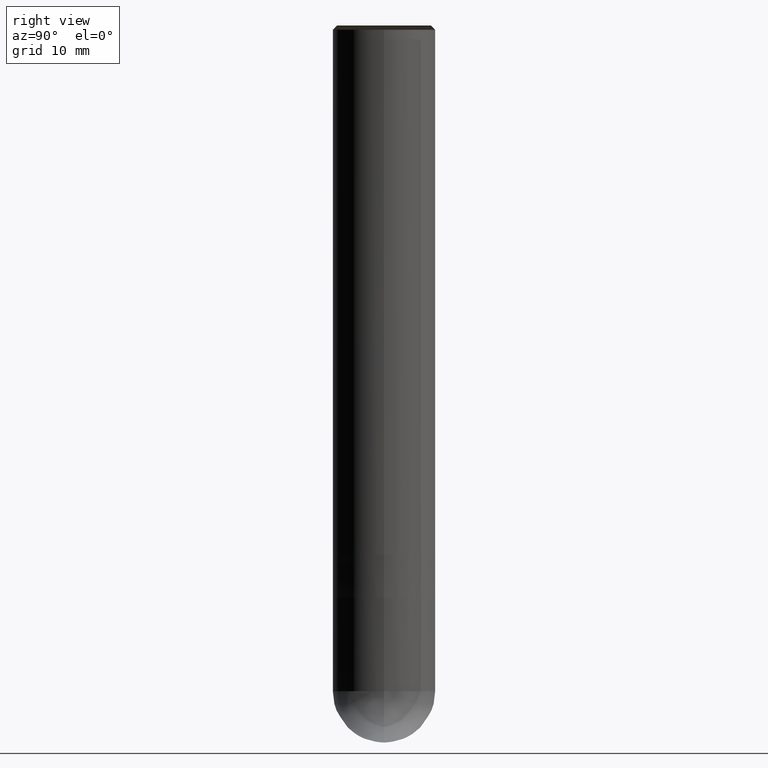
[diagram: clean part render]
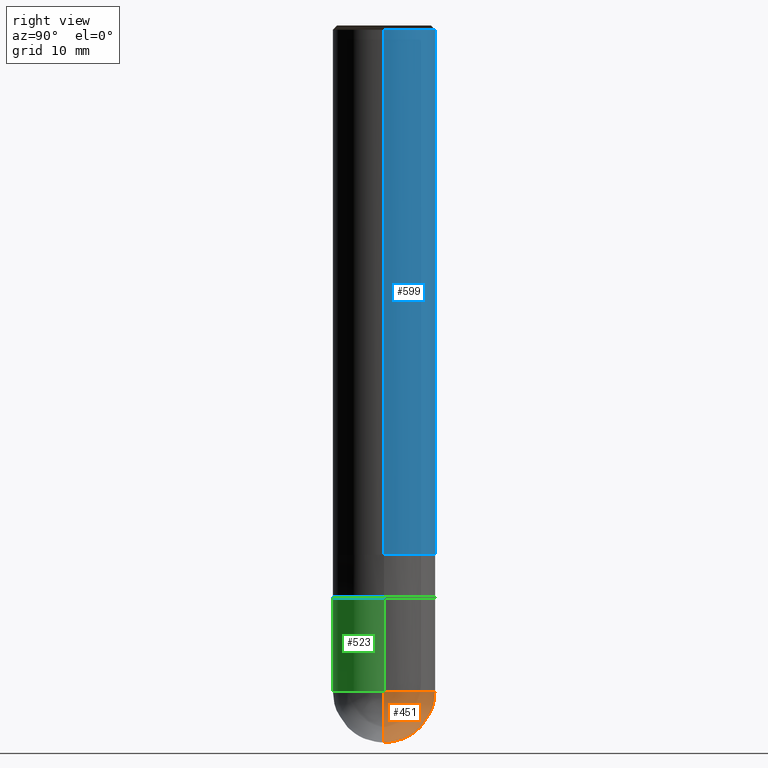
[diagram: same view with three faces highlighted in distinct colors, each labeled with its STEP entity id]
A machine part, right view with three faces highlighted in distinct colors.
Their STEP definitions:

[orange] entity #451 — the highlighted face is a freeform B-spline surface patch.
#380=CARTESIAN_POINT('',(0.0,0.0,-22.0));
#381=CARTESIAN_POINT('',(6.0,0.0,-22.0));
#382=CARTESIAN_POINT('',(6.0,6.0,-22.0));
#383=CARTESIAN_POINT('',(0.0,6.0,-22.0));
#384=CARTESIAN_POINT('',(-6.0,6.0,-22.0));
#385=CARTESIAN_POINT('',(-6.0,0.0,-22.0));
#386=CARTESIAN_POINT('',(6.0,0.0,-16.0));
#387=CARTESIAN_POINT('',(6.0,6.0,-16.0));
#388=CARTESIAN_POINT('',(0.0,6.0,-16.0));
#389=CARTESIAN_POINT('',(-6.0,6.0,-16.0));
#390=CARTESIAN_POINT('',(-6.0,0.0,-16.0));
#436=(
BOUNDED_SURFACE()
B_SPLINE_SURFACE(2,2,(
(#380,#380,#380,#380,#380),
(#381,#382,#383,#384,#385),
(#386,#387,#388,#389,#390)
), .UNSPECIFIED.,.F.,.F.,.F.)
B_SPLINE_SURFACE_WITH_KNOTS((3,3),(3,2,3),(
0.0,1.0),(
0.0,0.5,1.0), .UNSPECIFIED.)
GEOMETRIC_REPRESENTATION_ITEM()
RATIONAL_B_SPLINE_SURFACE(((1.0,0.707106781187,1.0,0.707106781187,1.0),
(0.707106781187,0.5,0.707106781187,0.5,0.707106781187),
(1.0,0.707106781187,1.0,0.707106781187,1.0)
))
REPRESENTATION_ITEM('')
SURFACE()
);
#437=(
BOUNDED_CURVE()
B_SPLINE_CURVE(2,(#390,#385,#380),.UNSPECIFIED.,.F.,.F.)
B_SPLINE_CURVE_WITH_KNOTS((3,3),
(0.0,1.0),.UNSPECIFIED.)
CURVE()
GEOMETRIC_REPRESENTATION_ITEM()
RATIONAL_B_SPLINE_CURVE((1.0,0.707106781187,1.0))
REPRESENTATION_ITEM('')
);
#438=(
BOUNDED_CURVE()
B_SPLINE_CURVE(2,(#380,#381,#386),.UNSPECIFIED.,.F.,.F.)
B_SPLINE_CURVE_WITH_KNOTS((3,3),
(0.0,1.0),.UNSPECIFIED.)
CURVE()
GEOMETRIC_REPRESENTATION_ITEM()
RATIONAL_B_SPLINE_CURVE((1.0,0.707106781187,1.0))
REPRESENTATION_ITEM('')
);
#439=(
BOUNDED_CURVE()
B_SPLINE_CURVE(2,(#386,#387,#388,#389,#390),.UNSPECIFIED.,.F.,.F.)
B_SPLINE_CURVE_WITH_KNOTS((3,2,3),
(0.0,0.5,1.0),.UNSPECIFIED.)
CURVE()
GEOMETRIC_REPRESENTATION_ITEM()
RATIONAL_B_SPLINE_CURVE((1.0,0.707106781187,1.0,0.707106781187,1.0))
REPRESENTATION_ITEM('')
);
#440=VERTEX_POINT('',#380);
#441=VERTEX_POINT('',#386);
#442=VERTEX_POINT('',#390);
#443=EDGE_CURVE('',#442,#440,#437,.T.);
#444=EDGE_CURVE('',#440,#441,#438,.T.);
#445=EDGE_CURVE('',#441,#442,#439,.T.);
#446=ORIENTED_EDGE('',*,*,#443,.T.);
#447=ORIENTED_EDGE('',*,*,#444,.T.);
#448=ORIENTED_EDGE('',*,*,#445,.T.);
#449=EDGE_LOOP('',(#446,#447,#448));
#450=FACE_OUTER_BOUND('',#449,.T.);
#451=ADVANCED_FACE('',(#450),#436,.T.);

[blue] entity #599 — the highlighted face is a freeform B-spline surface patch.
#406=CARTESIAN_POINT('',(6.0,0.0,0.0));
#407=CARTESIAN_POINT('',(6.0,6.0,0.0));
#408=CARTESIAN_POINT('',(0.0,6.0,0.0));
#409=CARTESIAN_POINT('',(-6.0,6.0,0.0));
#410=CARTESIAN_POINT('',(-6.0,0.0,0.0));
#411=CARTESIAN_POINT('',(6.0,0.0,61.5));
#412=CARTESIAN_POINT('',(6.0,6.0,61.5));
#413=CARTESIAN_POINT('',(0.0,6.0,61.5));
#414=CARTESIAN_POINT('',(-6.0,6.0,61.5));
#415=CARTESIAN_POINT('',(-6.0,0.0,61.5));
#580=(
BOUNDED_SURFACE()
B_SPLINE_SURFACE(1,2,(
(#406,#407,#408,#409,#410),
(#411,#412,#413,#414,#415)
), .UNSPECIFIED.,.F.,.F.,.F.)
B_SPLINE_SURFACE_WITH_KNOTS((2,2),(3,2,3),(
0.0,1.0),(
0.0,0.5,1.0), .UNSPECIFIED.)
GEOMETRIC_REPRESENTATION_ITEM()
RATIONAL_B_SPLINE_SURFACE(((1.0,0.707106781187,1.0,0.707106781187,1.0),
(1.0,0.707106781187,1.0,0.707106781187,1.0)
))
REPRESENTATION_ITEM('')
SURFACE()
);
#581=(
BOUNDED_CURVE()
B_SPLINE_CURVE(2,(#410,#409,#408,#407,#406),.UNSPECIFIED.,.F.,.F.)
B_SPLINE_CURVE_WITH_KNOTS((3,2,3),
(0.0,0.5,1.0),.UNSPECIFIED.)
CURVE()
GEOMETRIC_REPRESENTATION_ITEM()
RATIONAL_B_SPLINE_CURVE((1.0,0.707106781187,1.0,0.707106781187,1.0))
REPRESENTATION_ITEM('')
);
#582=(
BOUNDED_CURVE()
B_SPLINE_CURVE(1,(#406,#411),.UNSPECIFIED.,.F.,.F.)
B_SPLINE_CURVE_WITH_KNOTS((2,2),
(0.0,1.0),.UNSPECIFIED.)
CURVE()
GEOMETRIC_REPRESENTATION_ITEM()
RATIONAL_B_SPLINE_CURVE((1.0,1.0))
REPRESENTATION_ITEM('')
);
#583=(
BOUNDED_CURVE()
B_SPLINE_CURVE(2,(#411,#412,#413,#414,#415),.UNSPECIFIED.,.F.,.F.)
B_SPLINE_CURVE_WITH_KNOTS((3,2,3),
(0.0,0.5,1.0),.UNSPECIFIED.)
CURVE()
GEOMETRIC_REPRESENTATION_ITEM()
RATIONAL_B_SPLINE_CURVE((1.0,0.707106781187,1.0,0.707106781187,1.0))
REPRESENTATION_ITEM('')
);
#584=(
BOUNDED_CURVE()
B_SPLINE_CURVE(1,(#415,#410),.UNSPECIFIED.,.F.,.F.)
B_SPLINE_CURVE_WITH_KNOTS((2,2),
(0.0,1.0),.UNSPECIFIED.)
CURVE()
GEOMETRIC_REPRESENTATION_ITEM()
RATIONAL_B_SPLINE_CURVE((1.0,1.0))
REPRESENTATION_ITEM('')
);
#585=VERTEX_POINT('',#406);
#586=VERTEX_POINT('',#410);
#587=VERTEX_POINT('',#411);
#588=VERTEX_POINT('',#415);
#589=EDGE_CURVE('',#586,#585,#581,.T.);
#590=EDGE_CURVE('',#585,#587,#582,.T.);
#591=EDGE_CURVE('',#587,#588,#583,.T.);
#592=EDGE_CURVE('',#588,#586,#584,.T.);
#593=ORIENTED_EDGE('',*,*,#589,.T.);
#594=ORIENTED_EDGE('',*,*,#590,.T.);
#595=ORIENTED_EDGE('',*,*,#591,.T.);
#596=ORIENTED_EDGE('',*,*,#592,.T.);
#597=EDGE_LOOP('',(#593,#594,#595,#596));
#598=FACE_OUTER_BOUND('',#597,.T.);
#599=ADVANCED_FACE('',(#598),#580,.T.);

[green] entity #523 — the highlighted face is a freeform B-spline surface patch.
#386=CARTESIAN_POINT('',(6.0,0.0,-16.0));
#390=CARTESIAN_POINT('',(-6.0,0.0,-16.0));
#391=CARTESIAN_POINT('',(6.0,0.0,-5.0));
#395=CARTESIAN_POINT('',(-6.0,0.0,-5.0));
#400=CARTESIAN_POINT('',(-6.0,-6.0,-16.0));
#401=CARTESIAN_POINT('',(0.0,-6.0,-16.0));
#402=CARTESIAN_POINT('',(6.0,-6.0,-16.0));
#403=CARTESIAN_POINT('',(-6.0,-6.0,-5.0));
#404=CARTESIAN_POINT('',(0.0,-6.0,-5.0));
#405=CARTESIAN_POINT('',(6.0,-6.0,-5.0));
#504=(
BOUNDED_SURFACE()
B_SPLINE_SURFACE(1,2,(
(#390,#400,#401,#402,#386),
(#395,#403,#404,#405,#391)
), .UNSPECIFIED.,.F.,.F.,.F.)
B_SPLINE_SURFACE_WITH_KNOTS((2,2),(3,2,3),(
0.0,1.0),(
0.0,0.5,1.0), .UNSPECIFIED.)
GEOMETRIC_REPRESENTATION_ITEM()
RATIONAL_B_SPLINE_SURFACE(((1.0,0.707106781187,1.0,0.707106781187,1.0),
(1.0,0.707106781187,1.0,0.707106781187,1.0)
))
REPRESENTATION_ITEM('')
SURFACE()
);
#505=(
BOUNDED_CURVE()
B_SPLINE_CURVE(2,(#386,#402,#401,#400,#390),.UNSPECIFIED.,.F.,.F.)
B_SPLINE_CURVE_WITH_KNOTS((3,2,3),
(0.0,0.5,1.0),.UNSPECIFIED.)
CURVE()
GEOMETRIC_REPRESENTATION_ITEM()
RATIONAL_B_SPLINE_CURVE((1.0,0.707106781187,1.0,0.707106781187,1.0))
REPRESENTATION_ITEM('')
);
#506=(
BOUNDED_CURVE()
B_SPLINE_CURVE(1,(#390,#395),.UNSPECIFIED.,.F.,.F.)
B_SPLINE_CURVE_WITH_KNOTS((2,2),
(0.0,1.0),.UNSPECIFIED.)
CURVE()
GEOMETRIC_REPRESENTATION_ITEM()
RATIONAL_B_SPLINE_CURVE((1.0,1.0))
REPRESENTATION_ITEM('')
);
#507=(
BOUNDED_CURVE()
B_SPLINE_CURVE(2,(#395,#403,#404,#405,#391),.UNSPECIFIED.,.F.,.F.)
B_SPLINE_CURVE_WITH_KNOTS((3,2,3),
(0.0,0.5,1.0),.UNSPECIFIED.)
CURVE()
GEOMETRIC_REPRESENTATION_ITEM()
RATIONAL_B_SPLINE_CURVE((1.0,0.707106781187,1.0,0.707106781187,1.0))
REPRESENTATION_ITEM('')
);
#508=(
BOUNDED_CURVE()
B_SPLINE_CURVE(1,(#391,#386),.UNSPECIFIED.,.F.,.F.)
B_SPLINE_CURVE_WITH_KNOTS((2,2),
(0.0,1.0),.UNSPECIFIED.)
CURVE()
GEOMETRIC_REPRESENTATION_ITEM()
RATIONAL_B_SPLINE_CURVE((1.0,1.0))
REPRESENTATION_ITEM('')
);
#509=VERTEX_POINT('',#386);
#510=VERTEX_POINT('',#390);
#511=VERTEX_POINT('',#391);
#512=VERTEX_POINT('',#395);
#513=EDGE_CURVE('',#509,#510,#505,.T.);
#514=EDGE_CURVE('',#510,#512,#506,.T.);
#515=EDGE_CURVE('',#512,#511,#507,.T.);
#516=EDGE_CURVE('',#511,#509,#508,.T.);
#517=ORIENTED_EDGE('',*,*,#513,.T.);
#518=ORIENTED_EDGE('',*,*,#514,.T.);
#519=ORIENTED_EDGE('',*,*,#515,.T.);
#520=ORIENTED_EDGE('',*,*,#516,.T.);
#521=EDGE_LOOP('',(#517,#518,#519,#520));
#522=FACE_OUTER_BOUND('',#521,.T.);
#523=ADVANCED_FACE('',(#522),#504,.T.);